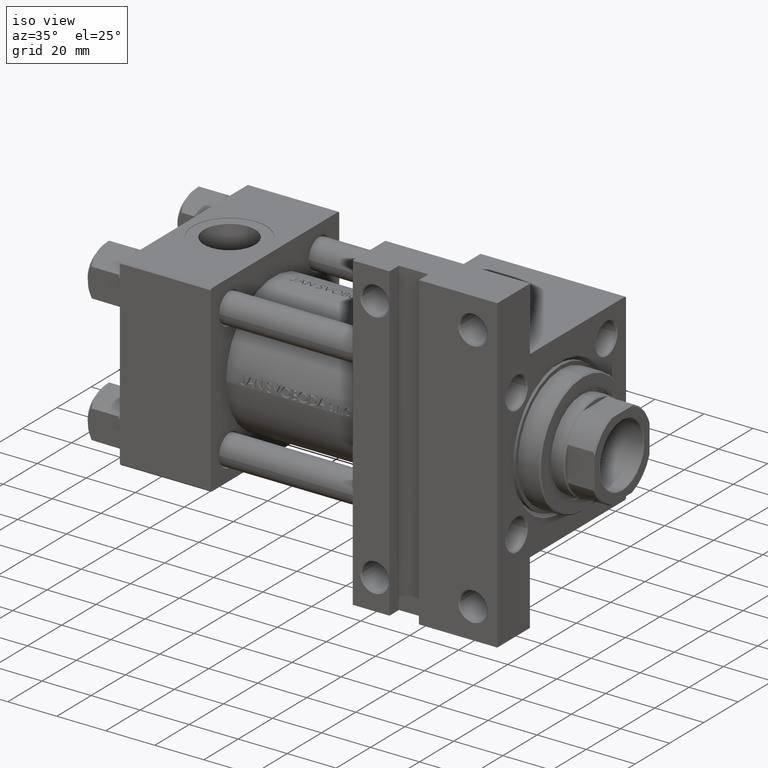
[diagram: clean part render]
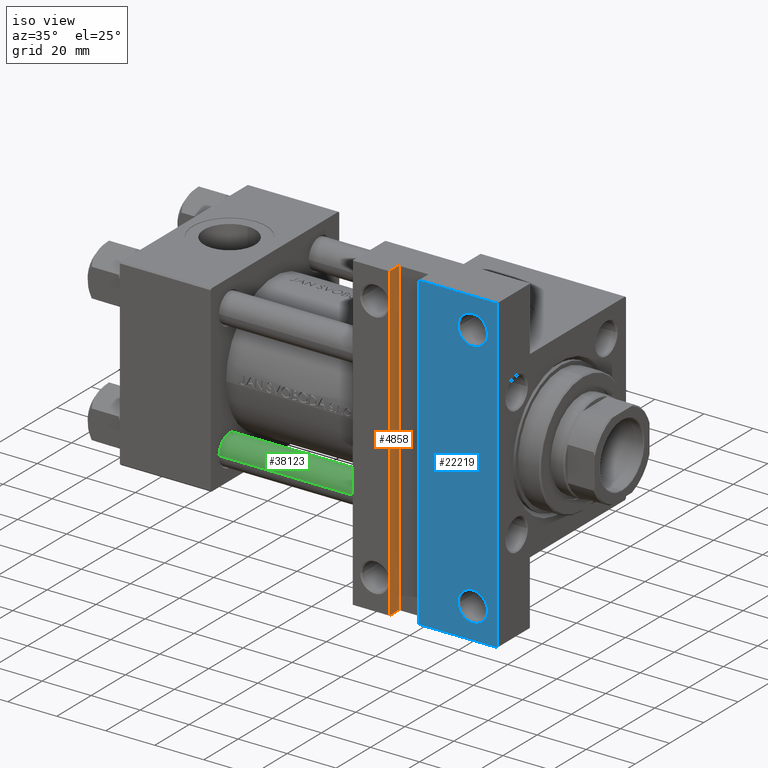
[diagram: same view with three faces highlighted in distinct colors, each labeled with its STEP entity id]
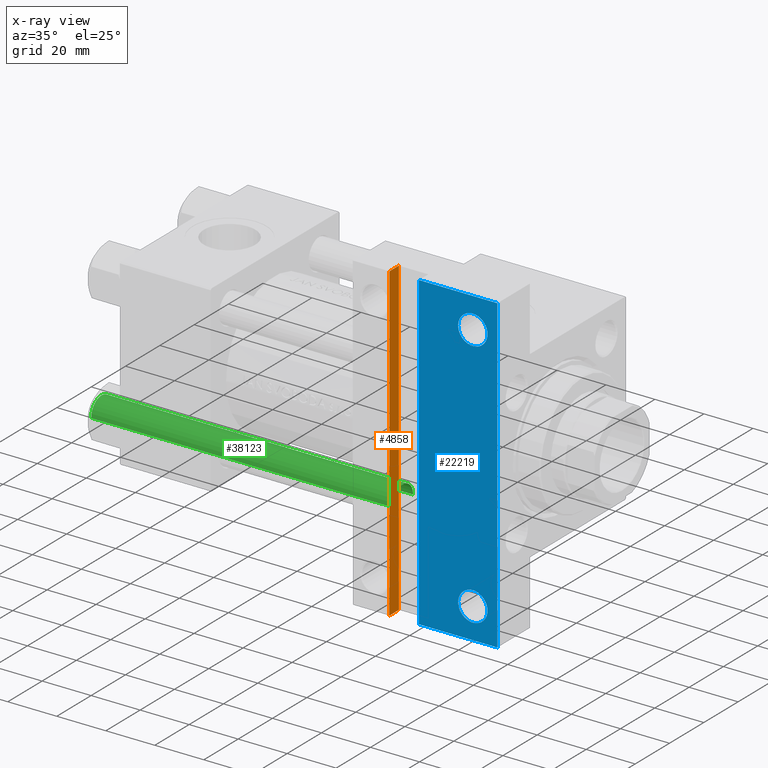
[diagram: x-ray of the same camera — body ghosted, the three highlighted faces saturated]
A machine part, iso view with three faces highlighted in distinct colors.
The next image is the same camera in x-ray (body ghosted, the three faces saturated) — at least one of them is partly hidden behind the body in this view.
Their STEP definitions:

[orange] entity #4858 — the highlighted planar face has unit normal (-1, 0, 0).
#1021 = EDGE_CURVE ( 'NONE', #46241, #21109, #7485, .T. ) ;
#3197 = CARTESIAN_POINT ( 'NONE',  ( 110.0000000000000000, -63.50000000000000000, -32.00000000000000000 ) ) ;
#4466 = ORIENTED_EDGE ( 'NONE', *, *, #47679, .T. ) ;
#4585 = ORIENTED_EDGE ( 'NONE', *, *, #1021, .F. ) ;
#4595 = EDGE_CURVE ( 'NONE', #42903, #21109, #12321, .T. ) ;
#4858 = ADVANCED_FACE ( 'NONE', ( #22591 ), #41939, .F. ) ;
#6989 = ORIENTED_EDGE ( 'NONE', *, *, #4595, .T. ) ;
#7485 = LINE ( 'NONE', #49702, #15732 ) ;
#7856 = CARTESIAN_POINT ( 'NONE',  ( 110.0000000000000000, 63.50000000000000000, -32.00000000000000000 ) ) ;
#7969 = CARTESIAN_POINT ( 'NONE',  ( 110.0000000000000000, -63.50000000000000000, -37.50000000000000000 ) ) ;
#9402 = CARTESIAN_POINT ( 'NONE',  ( 110.0000000000000000, -63.50000000000000000, -32.00000000000000000 ) ) ;
#11720 = CARTESIAN_POINT ( 'NONE',  ( 110.0000000000000000, -63.50000000000000000, -32.00000000000000000 ) ) ;
#11739 = ORIENTED_EDGE ( 'NONE', *, *, #21327, .F. ) ;
#11765 = DIRECTION ( 'NONE',  ( -1.000000000000000000, 0.000000000000000000, 0.000000000000000000 ) ) ;
#12289 = VECTOR ( 'NONE', #24968, 1000.000000000000000 ) ;
#12321 = LINE ( 'NONE', #28143, #18922 ) ;
#15732 = VECTOR ( 'NONE', #34884, 1000.000000000000000 ) ;
#18922 = VECTOR ( 'NONE', #39716, 1000.000000000000000 ) ;
#21109 = VERTEX_POINT ( 'NONE', #27854 ) ;
#21327 = EDGE_CURVE ( 'NONE', #49312, #46241, #22292, .T. ) ;
#22292 = LINE ( 'NONE', #11720, #25786 ) ;
#22591 = FACE_OUTER_BOUND ( 'NONE', #37536, .T. ) ;
#22950 = AXIS2_PLACEMENT_3D ( 'NONE', #45212, #11765, #30118 ) ;
#24968 = DIRECTION ( 'NONE',  ( -0.000000000000000000, -0.000000000000000000, -1.000000000000000000 ) ) ;
#25786 = VECTOR ( 'NONE', #26555, 1000.000000000000000 ) ;
#26555 = DIRECTION ( 'NONE',  ( 0.000000000000000000, 1.000000000000000000, 0.000000000000000000 ) ) ;
#27854 = CARTESIAN_POINT ( 'NONE',  ( 110.0000000000000000, 63.50000000000000000, -37.50000000000000000 ) ) ;
#28143 = CARTESIAN_POINT ( 'NONE',  ( 110.0000000000000000, -63.50000000000000000, -37.50000000000000000 ) ) ;
#30118 = DIRECTION ( 'NONE',  ( 0.000000000000000000, 0.000000000000000000, 1.000000000000000000 ) ) ;
#34884 = DIRECTION ( 'NONE',  ( -0.000000000000000000, -0.000000000000000000, -1.000000000000000000 ) ) ;
#37536 = EDGE_LOOP ( 'NONE', ( #6989, #4585, #11739, #4466 ) ) ;
#39716 = DIRECTION ( 'NONE',  ( 0.000000000000000000, 1.000000000000000000, 0.000000000000000000 ) ) ;
#41939 = PLANE ( 'NONE',  #22950 ) ;
#42903 = VERTEX_POINT ( 'NONE', #7969 ) ;
#45212 = CARTESIAN_POINT ( 'NONE',  ( 110.0000000000000000, -63.50000000000000000, -32.00000000000000000 ) ) ;
#46241 = VERTEX_POINT ( 'NONE', #7856 ) ;
#47679 = EDGE_CURVE ( 'NONE', #49312, #42903, #48100, .T. ) ;
#48100 = LINE ( 'NONE', #9402, #12289 ) ;
#49312 = VERTEX_POINT ( 'NONE', #3197 ) ;
#49702 = CARTESIAN_POINT ( 'NONE',  ( 110.0000000000000000, 63.50000000000000000, -32.00000000000000000 ) ) ;

[blue] entity #22219 — the highlighted planar face has unit normal (0, -1, 0).
#6 = EDGE_CURVE ( 'NONE', #7594, #34145, #19715, .T. ) ;
#304 = VECTOR ( 'NONE', #14981, 1000.000000000000000 ) ;
#601 = VERTEX_POINT ( 'NONE', #40977 ) ;
#2296 = LINE ( 'NONE', #22110, #46272 ) ;
#3397 = ORIENTED_EDGE ( 'NONE', *, *, #25177, .T. ) ;
#4544 = ORIENTED_EDGE ( 'NONE', *, *, #24971, .T. ) ;
#6026 = EDGE_CURVE ( 'NONE', #36932, #601, #2296, .T. ) ;
#6153 = ORIENTED_EDGE ( 'NONE', *, *, #6, .T. ) ;
#7097 = DIRECTION ( 'NONE',  ( -1.000000000000000000, 0.000000000000000000, 0.000000000000000000 ) ) ;
#7279 = DIRECTION ( 'NONE',  ( 1.000000000000000000, 0.000000000000000000, 0.000000000000000000 ) ) ;
#7357 = CARTESIAN_POINT ( 'NONE',  ( 143.9999999999999716, -51.00000000000000000, -37.50000000000000000 ) ) ;
#7544 = EDGE_CURVE ( 'NONE', #9138, #29392, #15251, .T. ) ;
#7594 = VERTEX_POINT ( 'NONE', #17233 ) ;
#9138 = VERTEX_POINT ( 'NONE', #42515 ) ;
#9988 = FACE_BOUND ( 'NONE', #13539, .T. ) ;
#10882 = AXIS2_PLACEMENT_3D ( 'NONE', #32593, #28563, #40142 ) ;
#11349 = DIRECTION ( 'NONE',  ( -1.000000000000000000, 0.000000000000000000, 0.000000000000000000 ) ) ;
#12373 = EDGE_LOOP ( 'NONE', ( #35131, #42474, #44127, #3397 ) ) ;
#12821 = AXIS2_PLACEMENT_3D ( 'NONE', #33353, #34110, #49428 ) ;
#13539 = EDGE_LOOP ( 'NONE', ( #6153, #41647 ) ) ;
#14553 = LINE ( 'NONE', #25610, #40097 ) ;
#14981 = DIRECTION ( 'NONE',  ( -1.000000000000000000, 4.704334850106596780E-16, -0.000000000000000000 ) ) ;
#15251 = LINE ( 'NONE', #35133, #25445 ) ;
#17233 = CARTESIAN_POINT ( 'NONE',  ( 138.0004999999999598, -51.00000000000000000, -37.50000000000000000 ) ) ;
#17741 = VERTEX_POINT ( 'NONE', #28522 ) ;
#17943 = CARTESIAN_POINT ( 'NONE',  ( 149.9994999999999550, -51.00000000000000000, -37.50000000000000000 ) ) ;
#19715 = CIRCLE ( 'NONE', #10882, 5.999499999999990507 ) ;
#21442 = CARTESIAN_POINT ( 'NONE',  ( 149.9994999999999550, 51.00000000000000000, -37.50000000000000000 ) ) ;
#21617 = DIRECTION ( 'NONE',  ( -0.000000000000000000, -1.000000000000000000, -0.000000000000000000 ) ) ;
#21807 = FACE_BOUND ( 'NONE', #30326, .T. ) ;
#22110 = CARTESIAN_POINT ( 'NONE',  ( 122.0000000000000000, -63.50000000000000000, -37.50000000000000000 ) ) ;
#22219 = ADVANCED_FACE ( 'NONE', ( #25069, #9988, #21807 ), #41153, .T. ) ;
#22667 = CARTESIAN_POINT ( 'NONE',  ( 143.9999999999999716, 51.00000000000000000, -37.50000000000000000 ) ) ;
#23552 = DIRECTION ( 'NONE',  ( 0.000000000000000000, -1.000000000000000000, 0.000000000000000000 ) ) ;
#24971 = EDGE_CURVE ( 'NONE', #46019, #17741, #43684, .T. ) ;
#25069 = FACE_OUTER_BOUND ( 'NONE', #12373, .T. ) ;
#25177 = EDGE_CURVE ( 'NONE', #29392, #601, #34613, .T. ) ;
#25445 = VECTOR ( 'NONE', #23552, 1000.000000000000000 ) ;
#25610 = CARTESIAN_POINT ( 'NONE',  ( 95.00000000000000000, 63.50000000000000000, -37.50000000000000000 ) ) ;
#26021 = AXIS2_PLACEMENT_3D ( 'NONE', #22667, #38006, #11349 ) ;
#26797 = CARTESIAN_POINT ( 'NONE',  ( 94.99999999999998579, -63.50000000000000000, -37.50000000000000000 ) ) ;
#28522 = CARTESIAN_POINT ( 'NONE',  ( 138.0004999999999598, 51.00000000000000000, -37.50000000000000000 ) ) ;
#28563 = DIRECTION ( 'NONE',  ( -0.000000000000000000, -0.000000000000000000, 1.000000000000000000 ) ) ;
#29392 = VERTEX_POINT ( 'NONE', #48155 ) ;
#30326 = EDGE_LOOP ( 'NONE', ( #40298, #4544 ) ) ;
#30452 = DIRECTION ( 'NONE',  ( -0.000000000000000000, -0.000000000000000000, 1.000000000000000000 ) ) ;
#32593 = CARTESIAN_POINT ( 'NONE',  ( 143.9999999999999716, -51.00000000000000000, -37.50000000000000000 ) ) ;
#32617 = DIRECTION ( 'NONE',  ( 0.000000000000000000, 0.000000000000000000, -1.000000000000000000 ) ) ;
#33353 = CARTESIAN_POINT ( 'NONE',  ( 143.9999999999999716, 51.00000000000000000, -37.50000000000000000 ) ) ;
#34110 = DIRECTION ( 'NONE',  ( -0.000000000000000000, -0.000000000000000000, 1.000000000000000000 ) ) ;
#34145 = VERTEX_POINT ( 'NONE', #17943 ) ;
#34613 = LINE ( 'NONE', #26797, #304 ) ;
#35131 = ORIENTED_EDGE ( 'NONE', *, *, #6026, .F. ) ;
#35133 = CARTESIAN_POINT ( 'NONE',  ( 154.0000000000000000, 37.50000000000000000, -37.50000000000000000 ) ) ;
#35912 = EDGE_CURVE ( 'NONE', #17741, #46019, #48137, .T. ) ;
#36932 = VERTEX_POINT ( 'NONE', #40270 ) ;
#37141 = CARTESIAN_POINT ( 'NONE',  ( 154.0000000000000000, 37.50000000000000000, -37.50000000000000000 ) ) ;
#37379 = DIRECTION ( 'NONE',  ( -1.000000000000000000, 0.000000000000000000, -0.000000000000000000 ) ) ;
#38006 = DIRECTION ( 'NONE',  ( -0.000000000000000000, -0.000000000000000000, 1.000000000000000000 ) ) ;
#38684 = AXIS2_PLACEMENT_3D ( 'NONE', #7357, #30452, #7097 ) ;
#38828 = EDGE_CURVE ( 'NONE', #36932, #9138, #14553, .T. ) ;
#40097 = VECTOR ( 'NONE', #7279, 1000.000000000000000 ) ;
#40142 = DIRECTION ( 'NONE',  ( -1.000000000000000000, 0.000000000000000000, 0.000000000000000000 ) ) ;
#40270 = CARTESIAN_POINT ( 'NONE',  ( 122.0000000000000000, 63.50000000000000000, -37.50000000000000000 ) ) ;
#40298 = ORIENTED_EDGE ( 'NONE', *, *, #35912, .T. ) ;
#40304 = AXIS2_PLACEMENT_3D ( 'NONE', #37141, #32617, #37379 ) ;
#40977 = CARTESIAN_POINT ( 'NONE',  ( 122.0000000000000000, -63.50000000000000000, -37.50000000000000000 ) ) ;
#41153 = PLANE ( 'NONE',  #40304 ) ;
#41647 = ORIENTED_EDGE ( 'NONE', *, *, #45104, .T. ) ;
#41895 = CIRCLE ( 'NONE', #38684, 5.999499999999990507 ) ;
#42474 = ORIENTED_EDGE ( 'NONE', *, *, #38828, .T. ) ;
#42515 = CARTESIAN_POINT ( 'NONE',  ( 154.0000000000000000, 63.50000000000000000, -37.50000000000000000 ) ) ;
#43684 = CIRCLE ( 'NONE', #26021, 5.999499999999990507 ) ;
#44127 = ORIENTED_EDGE ( 'NONE', *, *, #7544, .T. ) ;
#45104 = EDGE_CURVE ( 'NONE', #34145, #7594, #41895, .T. ) ;
#46019 = VERTEX_POINT ( 'NONE', #21442 ) ;
#46272 = VECTOR ( 'NONE', #21617, 1000.000000000000000 ) ;
#48137 = CIRCLE ( 'NONE', #12821, 5.999499999999990507 ) ;
#48155 = CARTESIAN_POINT ( 'NONE',  ( 153.9999999999999716, -63.50000000000002842, -37.50000000000000000 ) ) ;
#49428 = DIRECTION ( 'NONE',  ( -1.000000000000000000, 0.000000000000000000, 0.000000000000000000 ) ) ;

[green] entity #38123 — the highlighted cylindrical surface (edge-blend (fillet) strip) has radius 6 mm, axis along (1, 0, 0).
#1344 = VECTOR ( 'NONE', #28949, 1000.000000000000000 ) ;
#2669 = AXIS2_PLACEMENT_3D ( 'NONE', #49512, #10555, #18097 ) ;
#3201 = VERTEX_POINT ( 'NONE', #9889 ) ;
#4855 = ORIENTED_EDGE ( 'NONE', *, *, #5172, .F. ) ;
#5172 = EDGE_CURVE ( 'NONE', #46105, #30090, #17142, .T. ) ;
#6774 = DIRECTION ( 'NONE',  ( -0.000000000000000000, -0.000000000000000000, -1.000000000000000000 ) ) ;
#7023 = CYLINDRICAL_SURFACE ( 'NONE', #36879, 6.000000000000000888 ) ;
#8544 = ORIENTED_EDGE ( 'NONE', *, *, #42378, .T. ) ;
#8933 = VECTOR ( 'NONE', #22420, 1000.000000000000000 ) ;
#9889 = CARTESIAN_POINT ( 'NONE',  ( 6.000000000000000888, 7.347880794884120722E-16, 0.4999999999999865663 ) ) ;
#10555 = DIRECTION ( 'NONE',  ( 0.000000000000000000, 0.000000000000000000, -1.000000000000000000 ) ) ;
#12094 = CARTESIAN_POINT ( 'NONE',  ( 6.000000000000000888, 7.347880794884120722E-16, 124.0000000000000000 ) ) ;
#15128 = ORIENTED_EDGE ( 'NONE', *, *, #40811, .T. ) ;
#16225 = ORIENTED_EDGE ( 'NONE', *, *, #46515, .T. ) ;
#17142 = LINE ( 'NONE', #24925, #1344 ) ;
#18097 = DIRECTION ( 'NONE',  ( 1.000000000000000000, 0.000000000000000000, 0.000000000000000000 ) ) ;
#18571 = FACE_OUTER_BOUND ( 'NONE', #33648, .T. ) ;
#19131 = LINE ( 'NONE', #12094, #8933 ) ;
#22420 = DIRECTION ( 'NONE',  ( -0.000000000000000000, -0.000000000000000000, -1.000000000000000000 ) ) ;
#24925 = CARTESIAN_POINT ( 'NONE',  ( -6.000000000000000888, 0.000000000000000000, 124.0000000000000000 ) ) ;
#25844 = CARTESIAN_POINT ( 'NONE',  ( 0.000000000000000000, 0.000000000000000000, 0.4999999999999865663 ) ) ;
#25911 = CIRCLE ( 'NONE', #2669, 6.000000000000000888 ) ;
#26092 = DIRECTION ( 'NONE',  ( 1.000000000000000000, 0.000000000000000000, 0.000000000000000000 ) ) ;
#26892 = CARTESIAN_POINT ( 'NONE',  ( -6.000000000000000888, 0.000000000000000000, 0.4999999999999865663 ) ) ;
#28721 = CARTESIAN_POINT ( 'NONE',  ( -6.000000000000000888, 0.000000000000000000, 123.5000000000000426 ) ) ;
#28949 = DIRECTION ( 'NONE',  ( -0.000000000000000000, -0.000000000000000000, -1.000000000000000000 ) ) ;
#30090 = VERTEX_POINT ( 'NONE', #26892 ) ;
#30667 = CARTESIAN_POINT ( 'NONE',  ( 6.000000000000000888, 7.347880794884120722E-16, 123.5000000000000426 ) ) ;
#32096 = CIRCLE ( 'NONE', #38536, 6.000000000000000888 ) ;
#33648 = EDGE_LOOP ( 'NONE', ( #16225, #8544, #15128, #4855 ) ) ;
#33921 = DIRECTION ( 'NONE',  ( -1.000000000000000000, 0.000000000000000000, 0.000000000000000000 ) ) ;
#34164 = CARTESIAN_POINT ( 'NONE',  ( 0.000000000000000000, 0.000000000000000000, 124.0000000000000000 ) ) ;
#36879 = AXIS2_PLACEMENT_3D ( 'NONE', #34164, #6774, #33921 ) ;
#38123 = ADVANCED_FACE ( 'NONE', ( #18571 ), #7023, .T. ) ;
#38536 = AXIS2_PLACEMENT_3D ( 'NONE', #25844, #48971, #26092 ) ;
#40811 = EDGE_CURVE ( 'NONE', #3201, #30090, #32096, .T. ) ;
#42378 = EDGE_CURVE ( 'NONE', #47825, #3201, #19131, .T. ) ;
#46105 = VERTEX_POINT ( 'NONE', #28721 ) ;
#46515 = EDGE_CURVE ( 'NONE', #46105, #47825, #25911, .T. ) ;
#47825 = VERTEX_POINT ( 'NONE', #30667 ) ;
#48971 = DIRECTION ( 'NONE',  ( -0.000000000000000000, -0.000000000000000000, 1.000000000000000000 ) ) ;
#49512 = CARTESIAN_POINT ( 'NONE',  ( 0.000000000000000000, 0.000000000000000000, 123.5000000000000426 ) ) ;